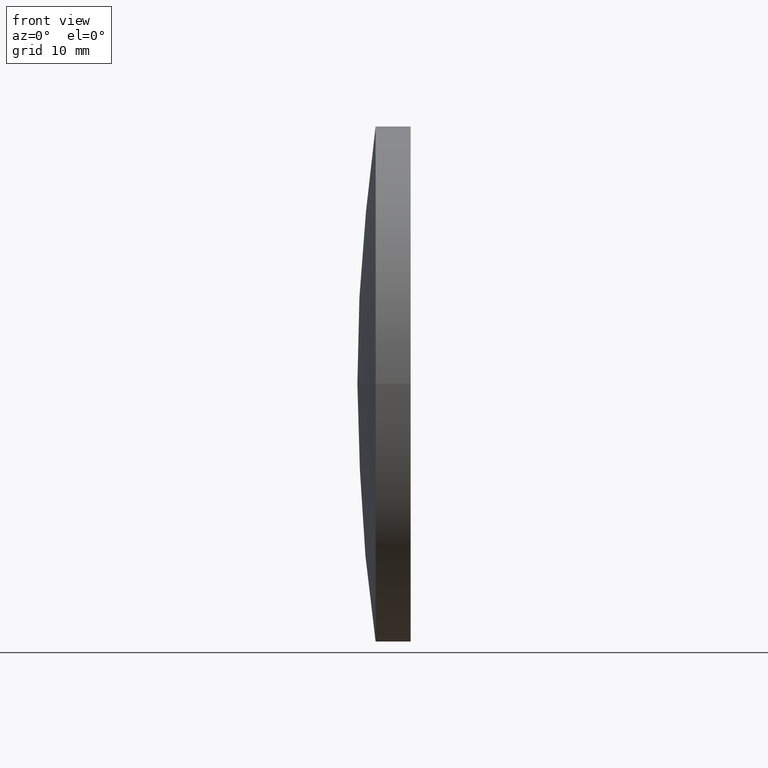
[diagram: clean part render]
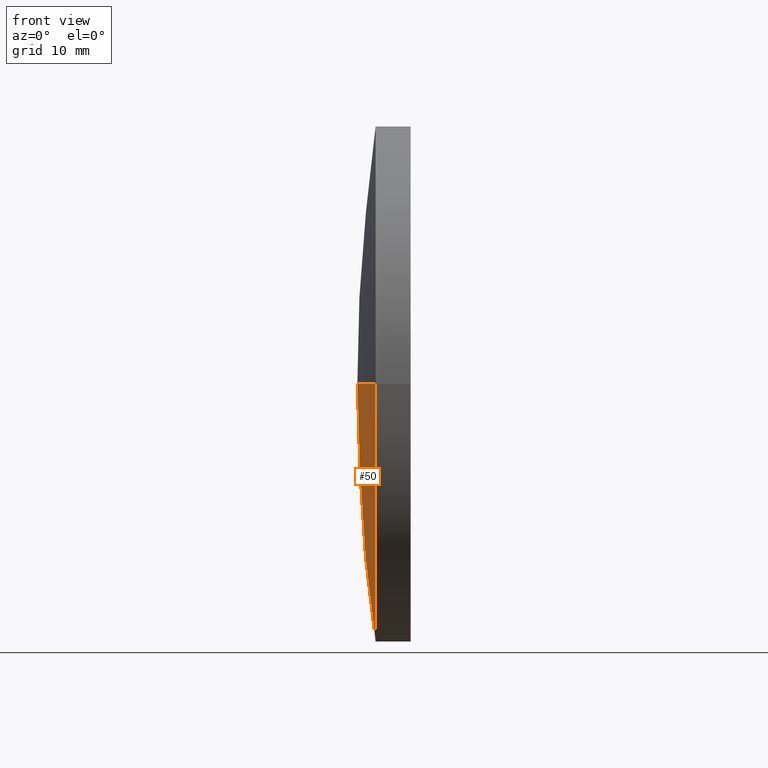
[diagram: same view with one face highlighted and labeled with its STEP entity id]
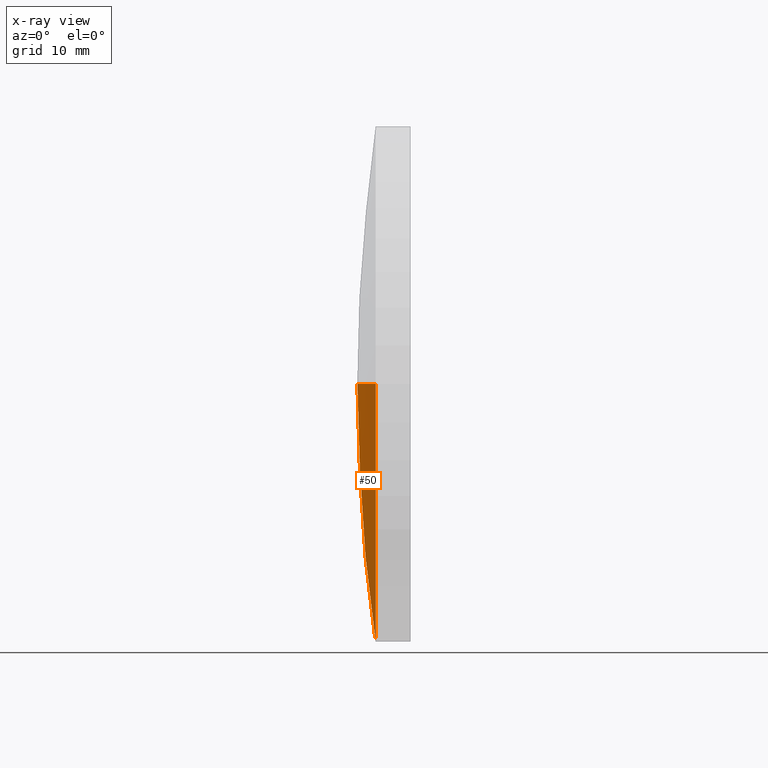
[diagram: x-ray of the same camera — body ghosted, the highlighted face saturated]
A machine part, front view. The second image highlights one B-rep face of the part: STEP entity #50.
The next image is the same camera in x-ray: the body ghosted, the highlighted face saturated — about 0% of this face is hidden behind the body in this view.
In plain terms, the highlighted spherical surface has radius 178 mm.
Its self-contained STEP definition (entity closure, byte-faithful):
#1 = SPHERICAL_SURFACE ( 'NONE', #82, 178.0000000000000300 ) ;
#4 = AXIS2_PLACEMENT_3D ( 'NONE', #124, #125, #21 ) ;
#13 = EDGE_CURVE ( 'NONE', #27, #177, #44, .T. ) ;
#16 = VERTEX_POINT ( 'NONE', #102 ) ;
#19 = DIRECTION ( 'NONE',  ( 1.000000000000000000, 0.0000000000000000000, 0.0000000000000000000 ) ) ;
#21 = DIRECTION ( 'NONE',  ( 0.0000000000000000000, 1.000000000000000000, 1.224646799147353000E-016 ) ) ;
#27 = VERTEX_POINT ( 'NONE', #28 ) ;
#28 = CARTESIAN_POINT ( 'NONE',  ( 247.0464934087960100, 155.4336809418806200, 3.061616997868381100E-015 ) ) ;
#34 = CARTESIAN_POINT ( 'NONE',  ( 247.0464934087960400, 130.4336809418806500, 0.0000000000000000000 ) ) ;
#44 = CIRCLE ( 'NONE', #84, 178.0000000000000000 ) ;
#49 = DIRECTION ( 'NONE',  ( -1.000000000000000000, -6.937607244762875000E-016, -0.0000000000000000000 ) ) ;
#50 = ADVANCED_FACE ( 'NONE', ( #71 ), #1, .T. ) ;
#55 = ORIENTED_EDGE ( 'NONE', *, *, #66, .T. ) ;
#56 = DIRECTION ( 'NONE',  ( -0.0000000000000000000, 0.0000000000000000000, 1.000000000000000000 ) ) ;
#57 = DIRECTION ( 'NONE',  ( 1.110223024625158500E-015, -1.000000000000000000, 0.0000000000000000000 ) ) ;
#66 = EDGE_CURVE ( 'NONE', #16, #177, #85, .T. ) ;
#71 = FACE_OUTER_BOUND ( 'NONE', #115, .T. ) ;
#82 = AXIS2_PLACEMENT_3D ( 'NONE', #100, #138, #183 ) ;
#84 = AXIS2_PLACEMENT_3D ( 'NONE', #173, #56, #19 ) ;
#85 = CIRCLE ( 'NONE', #4, 178.0000000000000300 ) ;
#88 = CIRCLE ( 'NONE', #159, 24.99999999999995400 ) ;
#89 = EDGE_CURVE ( 'NONE', #27, #16, #88, .T. ) ;
#95 = ORIENTED_EDGE ( 'NONE', *, *, #89, .T. ) ;
#100 = CARTESIAN_POINT ( 'NONE',  ( 423.2821311214902400, 130.4336809418806500, 0.0000000000000000000 ) ) ;
#102 = CARTESIAN_POINT ( 'NONE',  ( 247.0464934087960700, 105.4336809418807000, 0.0000000000000000000 ) ) ;
#108 = CARTESIAN_POINT ( 'NONE',  ( 245.2821311214901800, 130.4336809418805400, 0.0000000000000000000 ) ) ;
#115 = EDGE_LOOP ( 'NONE', ( #95, #55, #128 ) ) ;
#124 = CARTESIAN_POINT ( 'NONE',  ( 423.2821311214902400, 130.4336809418806500, 0.0000000000000000000 ) ) ;
#125 = DIRECTION ( 'NONE',  ( -8.496118506040342700E-032, 1.224646799147353200E-016, -1.000000000000000000 ) ) ;
#128 = ORIENTED_EDGE ( 'NONE', *, *, #13, .F. ) ;
#138 = DIRECTION ( 'NONE',  ( -0.0000000000000000000, 0.0000000000000000000, -1.000000000000000000 ) ) ;
#159 = AXIS2_PLACEMENT_3D ( 'NONE', #34, #49, #57 ) ;
#173 = CARTESIAN_POINT ( 'NONE',  ( 423.2821311214902400, 130.4336809418806500, 0.0000000000000000000 ) ) ;
#177 = VERTEX_POINT ( 'NONE', #108 ) ;
#183 = DIRECTION ( 'NONE',  ( -6.237208003512114900E-016, 1.000000000000000000, 0.0000000000000000000 ) ) ;